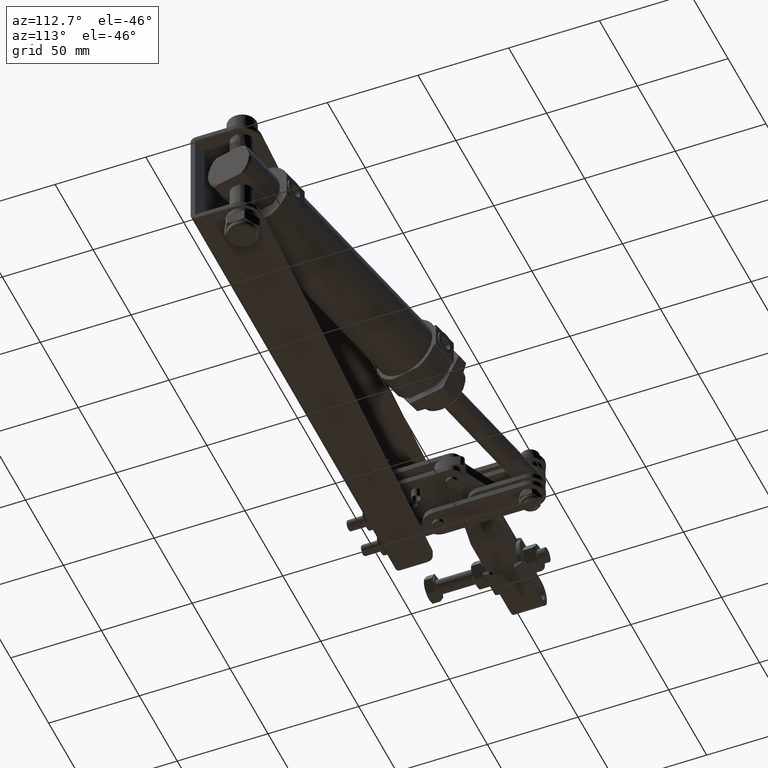
[diagram: clean part render]
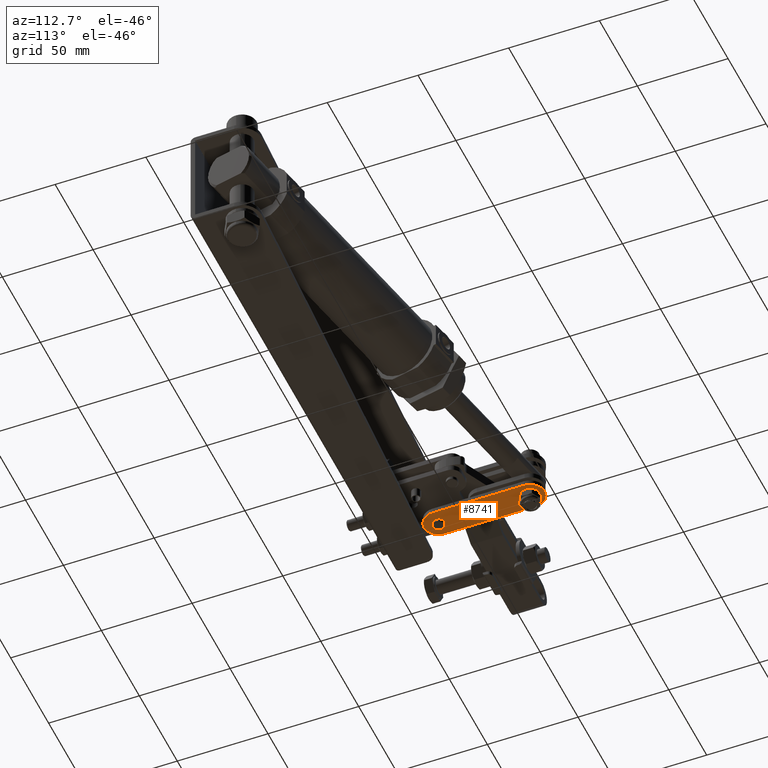
[diagram: same view with one face highlighted and labeled with its STEP entity id]
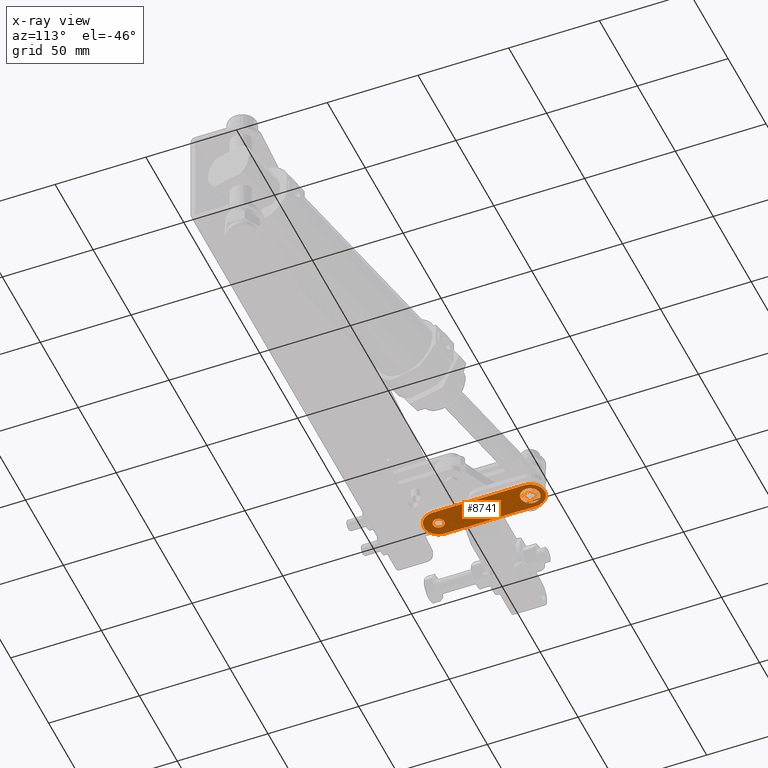
[diagram: x-ray of the same camera — body ghosted, the highlighted face saturated]
A machine part, auxiliary view. The second image highlights one B-rep face of the part: STEP entity #8741.
The next image is the same camera in x-ray: the body ghosted, the highlighted face saturated — about 0% of this face is hidden behind the body in this view.
In plain terms, the highlighted planar face has unit normal (-0, -0, 1).
Its self-contained STEP definition (entity closure, byte-faithful):
#31 = ORIENTED_EDGE ( 'NONE', *, *, #7702, .T. ) ;
#63 = CARTESIAN_POINT ( 'NONE',  ( -28.07528336540826800, 77.97842836352924700, -11.50000000000027000 ) ) ;
#71 = VERTEX_POINT ( 'NONE', #23138 ) ;
#174 = DIRECTION ( 'NONE',  ( 6.264243578644673800E-016, 2.341135992813206900E-015, -1.000000000000000000 ) ) ;
#233 = CARTESIAN_POINT ( 'NONE',  ( -24.76499999999762400, 24.20000000000280200, -11.49999999999994700 ) ) ;
#352 = LINE ( 'NONE', #15001, #4844 ) ;
#599 = DIRECTION ( 'NONE',  ( -1.000000000000000000, -2.618450529776313000E-015, -6.546126324440782600E-016 ) ) ;
#818 = DIRECTION ( 'NONE',  ( -1.000000000000000000, -4.205390244792263200E-015, -5.256737805990329000E-016 ) ) ;
#1092 = EDGE_CURVE ( 'NONE', #4871, #10964, #4984, .T. ) ;
#1300 = AXIS2_PLACEMENT_3D ( 'NONE', #23524, #12034, #599 ) ;
#1317 = CARTESIAN_POINT ( 'NONE',  ( -27.89999999999749400, 24.20000000000287000, -11.49999999999994700 ) ) ;
#1323 = CARTESIAN_POINT ( 'NONE',  ( -24.80028336540826200, 74.67994386303514900, -11.49999999999984200 ) ) ;
#1552 = VERTEX_POINT ( 'NONE', #4721 ) ;
#1844 = DIRECTION ( 'NONE',  ( -6.741446777506375700E-016, -2.114792470319773200E-015, 1.000000000000000000 ) ) ;
#1874 = EDGE_CURVE ( 'NONE', #18400, #1552, #6720, .T. ) ;
#1945 = EDGE_LOOP ( 'NONE', ( #23381, #10574 ) ) ;
#2007 = CARTESIAN_POINT ( 'NONE',  ( -27.97528336540826300, 74.67994386303513500, -11.49999999999984400 ) ) ;
#2441 = CARTESIAN_POINT ( 'NONE',  ( -27.97528336540826300, 74.67994386303513500, -11.49999999999984400 ) ) ;
#2487 = CARTESIAN_POINT ( 'NONE',  ( -19.90000889650603000, 24.21193080276213300, -11.49999999999994100 ) ) ;
#2797 = EDGE_CURVE ( 'NONE', #15582, #14635, #352, .T. ) ;
#2879 = VERTEX_POINT ( 'NONE', #15261 ) ;
#2880 = ORIENTED_EDGE ( 'NONE', *, *, #2797, .F. ) ;
#3116 = CARTESIAN_POINT ( 'NONE',  ( -27.97528336540796400, 74.67994386303520600, -11.49999999999984000 ) ) ;
#3230 = DIRECTION ( 'NONE',  ( 0.9999988879364560800, 0.001491350344907799200, 6.505213034913177500E-016 ) ) ;
#3260 = ORIENTED_EDGE ( 'NONE', *, *, #7222, .F. ) ;
#3451 = ORIENTED_EDGE ( 'NONE', *, *, #1092, .T. ) ;
#3922 = DIRECTION ( 'NONE',  ( -2.537498842675235700E-015, 1.000000000000000000, 2.341135992813205300E-015 ) ) ;
#3956 = DIRECTION ( 'NONE',  ( 0.0000000000000000000, -1.000000000000000000, -2.185478394931412500E-015 ) ) ;
#4123 = CIRCLE ( 'NONE', #16439, 5.299999999999998900 ) ;
#4185 = ORIENTED_EDGE ( 'NONE', *, *, #17312, .F. ) ;
#4376 = DIRECTION ( 'NONE',  ( 0.0000000000000000000, -1.000000000000000000, -2.185478394931412500E-015 ) ) ;
#4518 = VERTEX_POINT ( 'NONE', #20219 ) ;
#4528 = CARTESIAN_POINT ( 'NONE',  ( -27.89999999999762200, 24.20000000000279500, -11.49999999999994800 ) ) ;
#4632 = AXIS2_PLACEMENT_3D ( 'NONE', #7596, #20987, #9519 ) ;
#4637 = ORIENTED_EDGE ( 'NONE', *, *, #10461, .F. ) ;
#4688 = FACE_OUTER_BOUND ( 'NONE', #8190, .T. ) ;
#4705 = EDGE_CURVE ( 'NONE', #18389, #4952, #10116, .T. ) ;
#4721 = CARTESIAN_POINT ( 'NONE',  ( -33.27528336540826400, 74.67994386303512000, -11.50000000000028200 ) ) ;
#4781 = VERTEX_POINT ( 'NONE', #19530 ) ;
#4844 = VECTOR ( 'NONE', #18838, 1000.000000000000100 ) ;
#4871 = VERTEX_POINT ( 'NONE', #10356 ) ;
#4952 = VERTEX_POINT ( 'NONE', #14426 ) ;
#4974 = CARTESIAN_POINT ( 'NONE',  ( -27.97528336540826300, 74.67994386303513500, -11.50000000000027900 ) ) ;
#4975 = ORIENTED_EDGE ( 'NONE', *, *, #9235, .T. ) ;
#4984 = LINE ( 'NONE', #7430, #24731 ) ;
#5047 = DIRECTION ( 'NONE',  ( -0.9999988879364560800, -0.001491350344908751700, -6.505213034913549200E-016 ) ) ;
#5556 = ORIENTED_EDGE ( 'NONE', *, *, #13367, .T. ) ;
#5628 = PLANE ( 'NONE',  #7337 ) ;
#5846 = AXIS2_PLACEMENT_3D ( 'NONE', #2007, #15402, #3956 ) ;
#6050 = CARTESIAN_POINT ( 'NONE',  ( -27.89999999999762200, 24.20000000000279500, -11.49999999999994800 ) ) ;
#6463 = DIRECTION ( 'NONE',  ( 0.0000000000000000000, -1.000000000000000000, -2.213363286732768800E-015 ) ) ;
#6642 = CARTESIAN_POINT ( 'NONE',  ( -27.87528336540827600, 79.97900038283182800, -11.50000000000026500 ) ) ;
#6720 = CIRCLE ( 'NONE', #22862, 5.299999999999998900 ) ;
#6891 = DIRECTION ( 'NONE',  ( -1.000000000000000000, -4.205390244792263200E-015, -5.256737805990329000E-016 ) ) ;
#6927 = VECTOR ( 'NONE', #3922, 1000.000000000000000 ) ;
#6946 = CARTESIAN_POINT ( 'NONE',  ( -31.15028336540826400, 74.67994386303512000, -11.49999999999984500 ) ) ;
#7222 = EDGE_CURVE ( 'NONE', #71, #24483, #21916, .T. ) ;
#7337 = AXIS2_PLACEMENT_3D ( 'NONE', #13283, #1844, #15222 ) ;
#7430 = CARTESIAN_POINT ( 'NONE',  ( -19.88807809374676700, 16.21193969927066500, -11.49999999999995700 ) ) ;
#7468 = CIRCLE ( 'NONE', #5846, 3.174999999999997200 ) ;
#7471 = VERTEX_POINT ( 'NONE', #6946 ) ;
#7596 = CARTESIAN_POINT ( 'NONE',  ( -27.97528336540826300, 74.67994386303513500, -11.50000000000027900 ) ) ;
#7702 = EDGE_CURVE ( 'NONE', #23560, #4781, #17683, .T. ) ;
#7957 = DIRECTION ( 'NONE',  ( 1.106681643366384400E-015, -1.000000000000000000, -2.213363286732768800E-015 ) ) ;
#8043 = CIRCLE ( 'NONE', #9313, 3.174999999999997200 ) ;
#8190 = EDGE_LOOP ( 'NONE', ( #2880, #23438, #3451, #19127 ) ) ;
#8444 = CARTESIAN_POINT ( 'NONE',  ( -27.97528336540826300, 74.67994386303513500, -11.50000000000027900 ) ) ;
#8741 = ADVANCED_FACE ( 'NONE', ( #4688, #9767, #19933, #14837 ), #5628, .F. ) ;
#9235 = EDGE_CURVE ( 'NONE', #4952, #2879, #24388, .T. ) ;
#9313 = AXIS2_PLACEMENT_3D ( 'NONE', #2441, #15819, #4376 ) ;
#9437 = ORIENTED_EDGE ( 'NONE', *, *, #24190, .F. ) ;
#9519 = DIRECTION ( 'NONE',  ( -1.000000000000000000, -4.205390244792263200E-015, -5.256737805990329000E-016 ) ) ;
#9767 = FACE_BOUND ( 'NONE', #21167, .T. ) ;
#10116 = LINE ( 'NONE', #16935, #20277 ) ;
#10356 = CARTESIAN_POINT ( 'NONE',  ( -19.97529226191696600, 74.69187466579447200, -11.49999999999983500 ) ) ;
#10366 = DIRECTION ( 'NONE',  ( -1.000000000000000000, -2.618450529776313000E-015, -6.546126324440782600E-016 ) ) ;
#10461 = EDGE_CURVE ( 'NONE', #1552, #4781, #20425, .T. ) ;
#10574 = ORIENTED_EDGE ( 'NONE', *, *, #12620, .F. ) ;
#10964 = VERTEX_POINT ( 'NONE', #2487 ) ;
#11055 = CIRCLE ( 'NONE', #21068, 3.299999999999997200 ) ;
#11250 = DIRECTION ( 'NONE',  ( 2.144773142951178100E-015, -1.000000000000000000, -2.341135992813205300E-015 ) ) ;
#11265 = CIRCLE ( 'NONE', #20893, 7.999999999999357000 ) ;
#11610 = CARTESIAN_POINT ( 'NONE',  ( -27.97528336540826300, 74.67994386303513500, -11.50000000000027900 ) ) ;
#12034 = DIRECTION ( 'NONE',  ( 6.264243578644673800E-016, 2.341135992813206900E-015, -1.000000000000000000 ) ) ;
#12244 = DIRECTION ( 'NONE',  ( 6.264243578644673800E-016, 2.341135992813206900E-015, -1.000000000000000000 ) ) ;
#12408 = AXIS2_PLACEMENT_3D ( 'NONE', #6050, #19391, #7957 ) ;
#12409 = EDGE_CURVE ( 'NONE', #15582, #4871, #11265, .T. ) ;
#12612 = AXIS2_PLACEMENT_3D ( 'NONE', #1317, #14668, #3230 ) ;
#12620 = EDGE_CURVE ( 'NONE', #7471, #20771, #7468, .T. ) ;
#13255 = AXIS2_PLACEMENT_3D ( 'NONE', #4528, #17893, #6463 ) ;
#13283 = CARTESIAN_POINT ( 'NONE',  ( -35.88806030073006800, 16.18807809375213600, -11.49999999999996800 ) ) ;
#13324 = CIRCLE ( 'NONE', #19744, 3.299999999999997200 ) ;
#13367 = EDGE_CURVE ( 'NONE', #4518, #23560, #11055, .T. ) ;
#13529 = DIRECTION ( 'NONE',  ( -1.000000000000000000, -2.618450529776313000E-015, -6.546126324440782600E-016 ) ) ;
#13750 = CARTESIAN_POINT ( 'NONE',  ( -28.07528336540826800, 77.97842836352924700, -11.49999999999983300 ) ) ;
#14119 = ORIENTED_EDGE ( 'NONE', *, *, #1874, .F. ) ;
#14426 = CARTESIAN_POINT ( 'NONE',  ( -27.87528336540827200, 77.97842836352924700, -11.49999999999983300 ) ) ;
#14635 = VERTEX_POINT ( 'NONE', #21607 ) ;
#14668 = DIRECTION ( 'NONE',  ( 6.741446777506374700E-016, 2.114792470319772800E-015, -1.000000000000000000 ) ) ;
#14837 = FACE_BOUND ( 'NONE', #18614, .T. ) ;
#15001 = CARTESIAN_POINT ( 'NONE',  ( -35.88806030073006800, 16.18807809375213600, -11.49999999999996800 ) ) ;
#15222 = DIRECTION ( 'NONE',  ( -0.9999988879364559700, -0.001491350344907951600, -6.772978245389380900E-016 ) ) ;
#15261 = CARTESIAN_POINT ( 'NONE',  ( -24.67528336540826200, 74.67994386303514900, -11.50000000000027700 ) ) ;
#15402 = DIRECTION ( 'NONE',  ( 6.741446777506374700E-016, 2.114792470319772800E-015, -1.000000000000000000 ) ) ;
#15529 = CIRCLE ( 'NONE', #13255, 3.134999999999998900 ) ;
#15582 = VERTEX_POINT ( 'NONE', #19451 ) ;
#15819 = DIRECTION ( 'NONE',  ( 6.741446777506374700E-016, 2.114792470319772800E-015, -1.000000000000000000 ) ) ;
#15835 = EDGE_CURVE ( 'NONE', #10964, #14635, #21624, .T. ) ;
#16065 = ORIENTED_EDGE ( 'NONE', *, *, #4705, .T. ) ;
#16439 = AXIS2_PLACEMENT_3D ( 'NONE', #8444, #21803, #10366 ) ;
#16476 = DIRECTION ( 'NONE',  ( 6.741446777506374700E-016, 2.114792470319772800E-015, -1.000000000000000000 ) ) ;
#16695 = EDGE_CURVE ( 'NONE', #20771, #7471, #8043, .T. ) ;
#16935 = CARTESIAN_POINT ( 'NONE',  ( -27.87528336540827600, 79.97994386303513200, -11.50000000000026500 ) ) ;
#16957 = DIRECTION ( 'NONE',  ( 0.001491350344907951600, -0.9999988879364559700, -2.113784732638482300E-015 ) ) ;
#17312 = EDGE_CURVE ( 'NONE', #18389, #18400, #4123, .T. ) ;
#17683 = LINE ( 'NONE', #63, #6927 ) ;
#17893 = DIRECTION ( 'NONE',  ( 6.741446777506374700E-016, 2.114792470319772800E-015, -1.000000000000000000 ) ) ;
#18161 = CARTESIAN_POINT ( 'NONE',  ( -22.67528336540826200, 74.67994386303514900, -11.50000000000027500 ) ) ;
#18330 = DIRECTION ( 'NONE',  ( 6.264243578644673800E-016, 2.341135992813206900E-015, -1.000000000000000000 ) ) ;
#18389 = VERTEX_POINT ( 'NONE', #6642 ) ;
#18400 = VERTEX_POINT ( 'NONE', #18161 ) ;
#18614 = EDGE_LOOP ( 'NONE', ( #31, #4637, #14119, #4185, #16065, #4975, #20434, #5556 ) ) ;
#18838 = DIRECTION ( 'NONE',  ( 0.001491350344907951600, -0.9999988879364559700, -2.113784732638482300E-015 ) ) ;
#19127 = ORIENTED_EDGE ( 'NONE', *, *, #15835, .T. ) ;
#19391 = DIRECTION ( 'NONE',  ( 6.741446777506374700E-016, 2.114792470319772800E-015, -1.000000000000000000 ) ) ;
#19451 = CARTESIAN_POINT ( 'NONE',  ( -35.97527446889896700, 74.66801306027595300, -11.49999999999984500 ) ) ;
#19530 = CARTESIAN_POINT ( 'NONE',  ( -28.07528336540827500, 79.97900038283182800, -11.49999999999982900 ) ) ;
#19744 = AXIS2_PLACEMENT_3D ( 'NONE', #4974, #18330, #6891 ) ;
#19933 = FACE_BOUND ( 'NONE', #1945, .T. ) ;
#20219 = CARTESIAN_POINT ( 'NONE',  ( -31.27528336540826000, 74.67994386303512000, -11.50000000000028100 ) ) ;
#20277 = VECTOR ( 'NONE', #11250, 1000.000000000000000 ) ;
#20425 = CIRCLE ( 'NONE', #1300, 5.299999999999998900 ) ;
#20434 = ORIENTED_EDGE ( 'NONE', *, *, #21336, .T. ) ;
#20771 = VERTEX_POINT ( 'NONE', #1323 ) ;
#20893 = AXIS2_PLACEMENT_3D ( 'NONE', #3116, #16476, #5047 ) ;
#20987 = DIRECTION ( 'NONE',  ( 6.264243578644673800E-016, 2.341135992813206900E-015, -1.000000000000000000 ) ) ;
#21068 = AXIS2_PLACEMENT_3D ( 'NONE', #23734, #12244, #818 ) ;
#21167 = EDGE_LOOP ( 'NONE', ( #9437, #3260 ) ) ;
#21336 = EDGE_CURVE ( 'NONE', #2879, #4518, #13324, .T. ) ;
#21607 = CARTESIAN_POINT ( 'NONE',  ( -35.89999110348895800, 24.18806919724361000, -11.49999999999995200 ) ) ;
#21624 = CIRCLE ( 'NONE', #12612, 7.999999999999814400 ) ;
#21803 = DIRECTION ( 'NONE',  ( 6.264243578644673800E-016, 2.341135992813206900E-015, -1.000000000000000000 ) ) ;
#21916 = CIRCLE ( 'NONE', #12408, 3.134999999999998900 ) ;
#22862 = AXIS2_PLACEMENT_3D ( 'NONE', #11610, #174, #13529 ) ;
#23138 = CARTESIAN_POINT ( 'NONE',  ( -31.03499999999762000, 24.20000000000278800, -11.49999999999995000 ) ) ;
#23381 = ORIENTED_EDGE ( 'NONE', *, *, #16695, .F. ) ;
#23438 = ORIENTED_EDGE ( 'NONE', *, *, #12409, .T. ) ;
#23524 = CARTESIAN_POINT ( 'NONE',  ( -27.97528336540826300, 74.67994386303513500, -11.50000000000027900 ) ) ;
#23560 = VERTEX_POINT ( 'NONE', #13750 ) ;
#23734 = CARTESIAN_POINT ( 'NONE',  ( -27.97528336540826300, 74.67994386303513500, -11.50000000000027900 ) ) ;
#24190 = EDGE_CURVE ( 'NONE', #24483, #71, #15529, .T. ) ;
#24388 = CIRCLE ( 'NONE', #4632, 3.299999999999997200 ) ;
#24483 = VERTEX_POINT ( 'NONE', #233 ) ;
#24731 = VECTOR ( 'NONE', #16957, 1000.000000000000100 ) ;